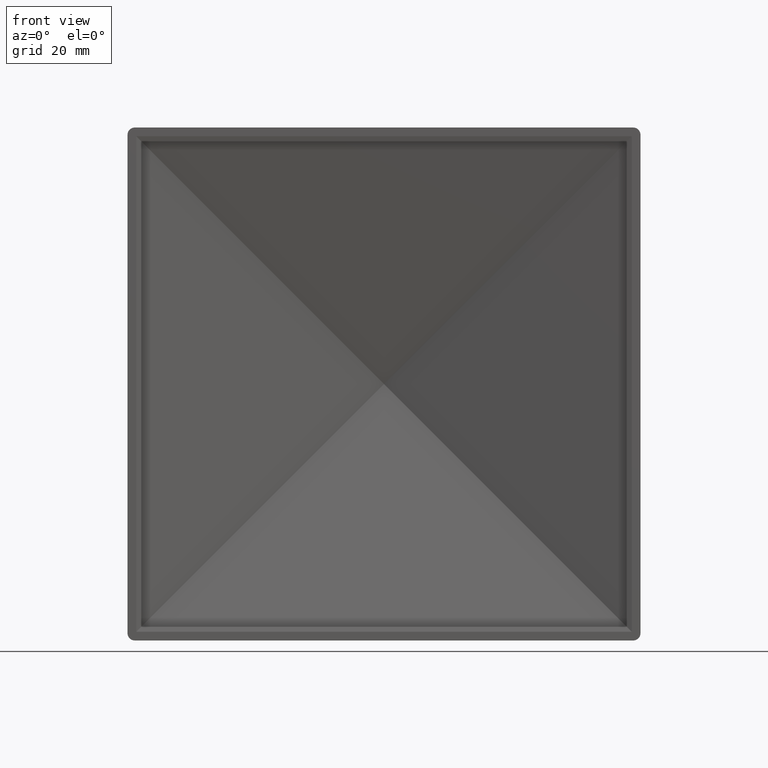
[diagram: clean part render]
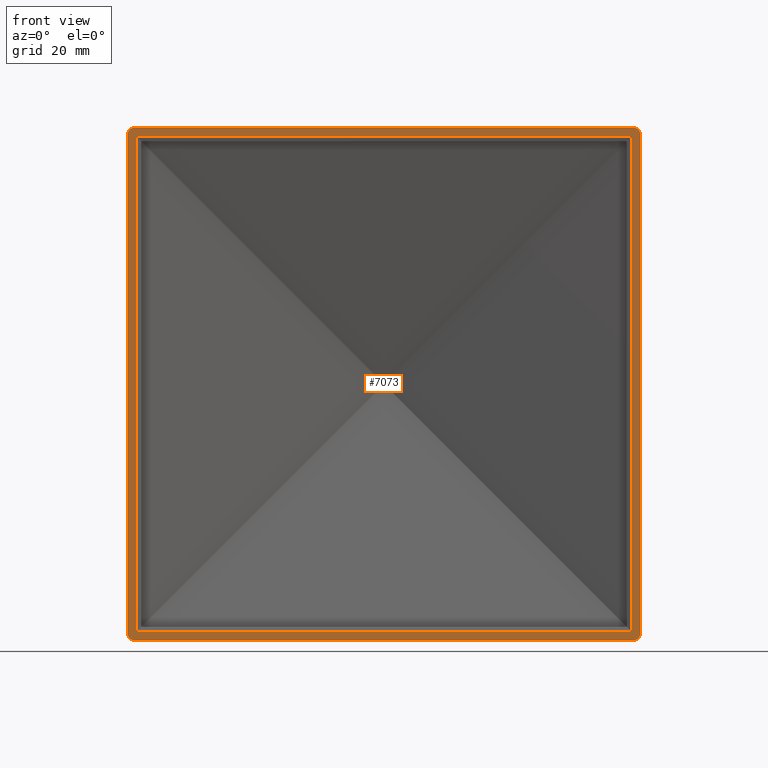
[diagram: same view with one face highlighted and labeled with its STEP entity id]
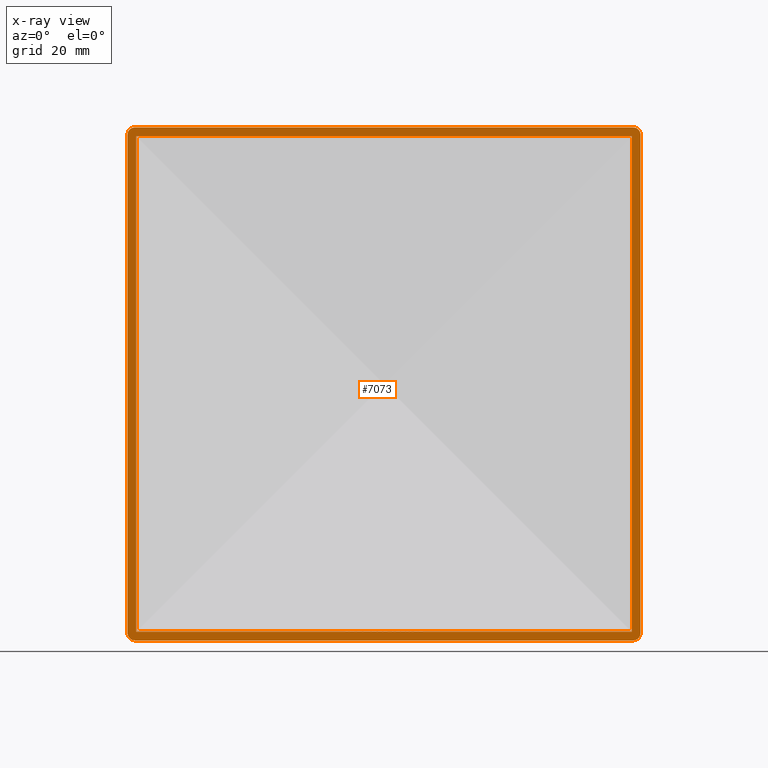
[diagram: x-ray of the same camera — body ghosted, the highlighted face saturated]
A machine part, front view. The second image highlights one B-rep face of the part: STEP entity #7073.
The next image is the same camera in x-ray: the body ghosted, the highlighted face saturated — about 0% of this face is hidden behind the body in this view.
In plain terms, the highlighted planar face has unit normal (0, 1, 0).
Its self-contained STEP definition (entity closure, byte-faithful):
#3 = CIRCLE ( 'NONE', #8168, 1.500000000000001300 ) ;
#27 = ORIENTED_EDGE ( 'NONE', *, *, #338, .T. ) ;
#231 = PLANE ( 'NONE',  #11033 ) ;
#338 = EDGE_CURVE ( 'NONE', #5863, #2590, #8568, .T. ) ;
#348 = DIRECTION ( 'NONE',  ( 0.0000000000000000000, 0.0000000000000000000, 1.000000000000000000 ) ) ;
#545 = ORIENTED_EDGE ( 'NONE', *, *, #8810, .F. ) ;
#688 = LINE ( 'NONE', #6452, #9762 ) ;
#716 = DIRECTION ( 'NONE',  ( 1.000000000000000000, -0.0000000000000000000, 0.0000000000000000000 ) ) ;
#754 = CARTESIAN_POINT ( 'NONE',  ( 52.50000000000001400, 0.0000000000000000000, 51.00000000000000700 ) ) ;
#805 = FACE_OUTER_BOUND ( 'NONE', #5358, .T. ) ;
#887 = DIRECTION ( 'NONE',  ( -6.608470384673550800E-017, 0.0000000000000000000, -1.000000000000000000 ) ) ;
#967 = EDGE_CURVE ( 'NONE', #6380, #6055, #4857, .T. ) ;
#980 = CARTESIAN_POINT ( 'NONE',  ( -52.50000000000000700, 0.0000000000000000000, -50.69999999999998900 ) ) ;
#1211 = LINE ( 'NONE', #11188, #10970 ) ;
#1265 = CARTESIAN_POINT ( 'NONE',  ( 51.00000000000000700, 0.0000000000000000000, -52.49999999999999300 ) ) ;
#1413 = CARTESIAN_POINT ( 'NONE',  ( -50.69999999999998200, 0.0000000000000000000, 50.70000000000000300 ) ) ;
#1469 = ORIENTED_EDGE ( 'NONE', *, *, #5520, .T. ) ;
#1508 = CARTESIAN_POINT ( 'NONE',  ( 50.70000000000000300, 0.0000000000000000000, -50.69999999999998900 ) ) ;
#1807 = CARTESIAN_POINT ( 'NONE',  ( -52.49999999999998600, 0.0000000000000000000, 51.00000000000000700 ) ) ;
#2350 = ORIENTED_EDGE ( 'NONE', *, *, #7316, .T. ) ;
#2590 = VERTEX_POINT ( 'NONE', #1413 ) ;
#2884 = DIRECTION ( 'NONE',  ( -0.0000000000000000000, -1.000000000000000000, -0.0000000000000000000 ) ) ;
#2911 = DIRECTION ( 'NONE',  ( 1.982541115402065400E-016, -0.0000000000000000000, 1.000000000000000000 ) ) ;
#2956 = ORIENTED_EDGE ( 'NONE', *, *, #967, .F. ) ;
#3027 = DIRECTION ( 'NONE',  ( -6.608470384673550800E-017, -0.0000000000000000000, -1.000000000000000000 ) ) ;
#3077 = CARTESIAN_POINT ( 'NONE',  ( -50.99999999999998600, 0.0000000000000000000, 52.50000000000000700 ) ) ;
#3272 = AXIS2_PLACEMENT_3D ( 'NONE', #4061, #10124, #8447 ) ;
#3336 = VERTEX_POINT ( 'NONE', #9403 ) ;
#3924 = CIRCLE ( 'NONE', #6365, 1.500000000000001300 ) ;
#4061 = CARTESIAN_POINT ( 'NONE',  ( -50.99999999999998600, 0.0000000000000000000, 51.00000000000000700 ) ) ;
#4124 = LINE ( 'NONE', #10868, #6294 ) ;
#4181 = CIRCLE ( 'NONE', #6785, 1.500000000000001300 ) ;
#4387 = EDGE_CURVE ( 'NONE', #8915, #5494, #4124, .T. ) ;
#4416 = ORIENTED_EDGE ( 'NONE', *, *, #6397, .T. ) ;
#4857 = LINE ( 'NONE', #8643, #9733 ) ;
#5358 = EDGE_LOOP ( 'NONE', ( #9278, #9709, #6966, #1469, #545, #4416, #2956, #5875 ) ) ;
#5461 = EDGE_CURVE ( 'NONE', #2590, #8620, #9103, .T. ) ;
#5494 = VERTEX_POINT ( 'NONE', #11239 ) ;
#5520 = EDGE_CURVE ( 'NONE', #5869, #3336, #3, .T. ) ;
#5679 = CARTESIAN_POINT ( 'NONE',  ( 52.50000000000000700, 0.0000000000000000000, -50.99999999999999300 ) ) ;
#5863 = VERTEX_POINT ( 'NONE', #7609 ) ;
#5869 = VERTEX_POINT ( 'NONE', #754 ) ;
#5875 = ORIENTED_EDGE ( 'NONE', *, *, #6325, .T. ) ;
#5906 = DIRECTION ( 'NONE',  ( -1.000000000000000000, -0.0000000000000000000, -0.0000000000000000000 ) ) ;
#6055 = VERTEX_POINT ( 'NONE', #1807 ) ;
#6125 = DIRECTION ( 'NONE',  ( -0.0000000000000000000, -1.000000000000000000, -0.0000000000000000000 ) ) ;
#6159 = EDGE_LOOP ( 'NONE', ( #2350, #11243, #27, #10556 ) ) ;
#6233 = VECTOR ( 'NONE', #716, 1000.000000000000000 ) ;
#6294 = VECTOR ( 'NONE', #5906, 1000.000000000000000 ) ;
#6325 = EDGE_CURVE ( 'NONE', #6380, #5494, #4181, .T. ) ;
#6365 = AXIS2_PLACEMENT_3D ( 'NONE', #10987, #9355, #7499 ) ;
#6380 = VERTEX_POINT ( 'NONE', #9072 ) ;
#6388 = CARTESIAN_POINT ( 'NONE',  ( -52.49999999999998600, 0.0000000000000000000, 52.50000000000000700 ) ) ;
#6397 = EDGE_CURVE ( 'NONE', #9707, #6055, #11077, .T. ) ;
#6452 = CARTESIAN_POINT ( 'NONE',  ( 52.50000000000000700, 0.0000000000000000000, -52.49999999999999300 ) ) ;
#6757 = EDGE_CURVE ( 'NONE', #5869, #10469, #688, .T. ) ;
#6785 = AXIS2_PLACEMENT_3D ( 'NONE', #7830, #6125, #11225 ) ;
#6817 = EDGE_CURVE ( 'NONE', #8915, #10469, #3924, .T. ) ;
#6966 = ORIENTED_EDGE ( 'NONE', *, *, #6757, .F. ) ;
#7073 = ADVANCED_FACE ( 'NONE', ( #7403, #805 ), #231, .F. ) ;
#7261 = CARTESIAN_POINT ( 'NONE',  ( 51.00000000000000700, 0.0000000000000000000, 51.00000000000000700 ) ) ;
#7316 = EDGE_CURVE ( 'NONE', #8620, #9395, #1211, .T. ) ;
#7332 = CARTESIAN_POINT ( 'NONE',  ( 0.0000000000000000000, 0.0000000000000000000, 0.0000000000000000000 ) ) ;
#7403 = FACE_BOUND ( 'NONE', #6159, .T. ) ;
#7499 = DIRECTION ( 'NONE',  ( 0.0000000000000000000, 0.0000000000000000000, 1.000000000000000000 ) ) ;
#7592 = VECTOR ( 'NONE', #8121, 1000.000000000000000 ) ;
#7609 = CARTESIAN_POINT ( 'NONE',  ( -50.70000000000000300, 0.0000000000000000000, -50.69999999999998900 ) ) ;
#7830 = CARTESIAN_POINT ( 'NONE',  ( -51.00000000000000700, 0.0000000000000000000, -50.99999999999999300 ) ) ;
#7912 = LINE ( 'NONE', #980, #9170 ) ;
#8121 = DIRECTION ( 'NONE',  ( 1.000000000000000000, 0.0000000000000000000, 0.0000000000000000000 ) ) ;
#8168 = AXIS2_PLACEMENT_3D ( 'NONE', #7261, #2884, #348 ) ;
#8447 = DIRECTION ( 'NONE',  ( 0.0000000000000000000, 0.0000000000000000000, 1.000000000000000000 ) ) ;
#8568 = LINE ( 'NONE', #9062, #10874 ) ;
#8620 = VERTEX_POINT ( 'NONE', #9240 ) ;
#8643 = CARTESIAN_POINT ( 'NONE',  ( -52.50000000000000700, 0.0000000000000000000, -52.49999999999999300 ) ) ;
#8810 = EDGE_CURVE ( 'NONE', #9707, #3336, #10862, .T. ) ;
#8915 = VERTEX_POINT ( 'NONE', #1265 ) ;
#9062 = CARTESIAN_POINT ( 'NONE',  ( -50.70000000000000300, 0.0000000000000000000, -52.49999999999999300 ) ) ;
#9072 = CARTESIAN_POINT ( 'NONE',  ( -52.50000000000000700, 0.0000000000000000000, -50.99999999999999300 ) ) ;
#9103 = LINE ( 'NONE', #9384, #6233 ) ;
#9151 = DIRECTION ( 'NONE',  ( 0.0000000000000000000, 1.000000000000000000, 0.0000000000000000000 ) ) ;
#9170 = VECTOR ( 'NONE', #10363, 1000.000000000000000 ) ;
#9232 = DIRECTION ( 'NONE',  ( 0.0000000000000000000, -0.0000000000000000000, 1.000000000000000000 ) ) ;
#9240 = CARTESIAN_POINT ( 'NONE',  ( 50.70000000000001000, 0.0000000000000000000, 50.70000000000000300 ) ) ;
#9278 = ORIENTED_EDGE ( 'NONE', *, *, #4387, .F. ) ;
#9355 = DIRECTION ( 'NONE',  ( -0.0000000000000000000, -1.000000000000000000, -0.0000000000000000000 ) ) ;
#9384 = CARTESIAN_POINT ( 'NONE',  ( -52.49999999999998600, 0.0000000000000000000, 50.70000000000000300 ) ) ;
#9395 = VERTEX_POINT ( 'NONE', #1508 ) ;
#9403 = CARTESIAN_POINT ( 'NONE',  ( 51.00000000000000700, 0.0000000000000000000, 52.50000000000000700 ) ) ;
#9552 = DIRECTION ( 'NONE',  ( 1.982541115402065100E-016, 0.0000000000000000000, 1.000000000000000000 ) ) ;
#9707 = VERTEX_POINT ( 'NONE', #3077 ) ;
#9709 = ORIENTED_EDGE ( 'NONE', *, *, #6817, .T. ) ;
#9733 = VECTOR ( 'NONE', #9552, 1000.000000000000000 ) ;
#9762 = VECTOR ( 'NONE', #3027, 1000.000000000000000 ) ;
#10124 = DIRECTION ( 'NONE',  ( -0.0000000000000000000, -1.000000000000000000, -0.0000000000000000000 ) ) ;
#10363 = DIRECTION ( 'NONE',  ( -1.000000000000000000, 0.0000000000000000000, 0.0000000000000000000 ) ) ;
#10469 = VERTEX_POINT ( 'NONE', #5679 ) ;
#10556 = ORIENTED_EDGE ( 'NONE', *, *, #5461, .T. ) ;
#10654 = EDGE_CURVE ( 'NONE', #9395, #5863, #7912, .T. ) ;
#10862 = LINE ( 'NONE', #6388, #7592 ) ;
#10868 = CARTESIAN_POINT ( 'NONE',  ( -52.50000000000000700, 0.0000000000000000000, -52.49999999999999300 ) ) ;
#10874 = VECTOR ( 'NONE', #2911, 1000.000000000000000 ) ;
#10970 = VECTOR ( 'NONE', #887, 1000.000000000000000 ) ;
#10987 = CARTESIAN_POINT ( 'NONE',  ( 51.00000000000000700, 0.0000000000000000000, -50.99999999999999300 ) ) ;
#11033 = AXIS2_PLACEMENT_3D ( 'NONE', #7332, #9151, #9232 ) ;
#11077 = CIRCLE ( 'NONE', #3272, 1.500000000000001300 ) ;
#11188 = CARTESIAN_POINT ( 'NONE',  ( 50.70000000000000300, 0.0000000000000000000, -52.49999999999999300 ) ) ;
#11225 = DIRECTION ( 'NONE',  ( 0.0000000000000000000, 0.0000000000000000000, 1.000000000000000000 ) ) ;
#11239 = CARTESIAN_POINT ( 'NONE',  ( -51.00000000000000700, 0.0000000000000000000, -52.49999999999999300 ) ) ;
#11243 = ORIENTED_EDGE ( 'NONE', *, *, #10654, .T. ) ;